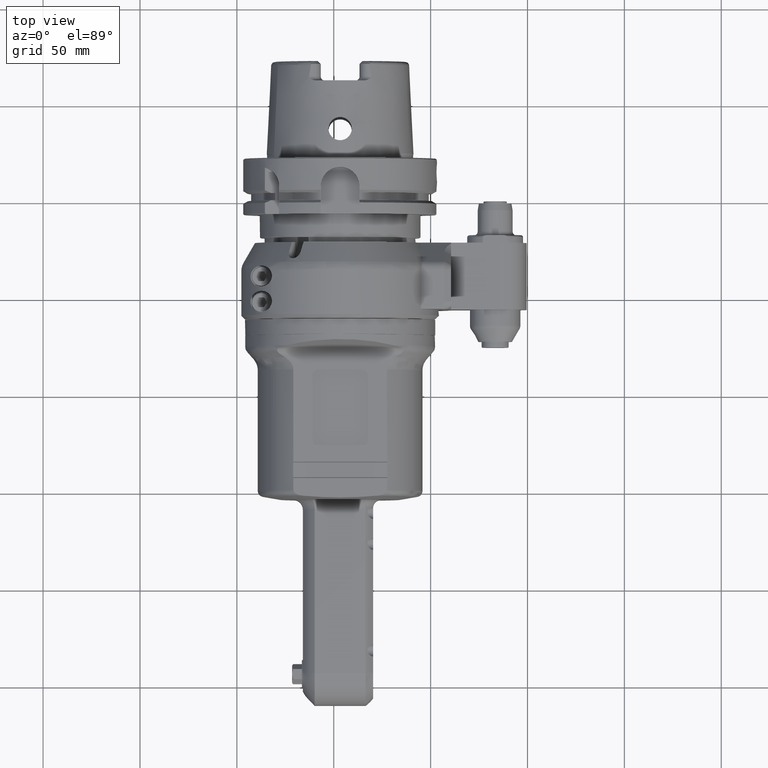
[diagram: clean part render]
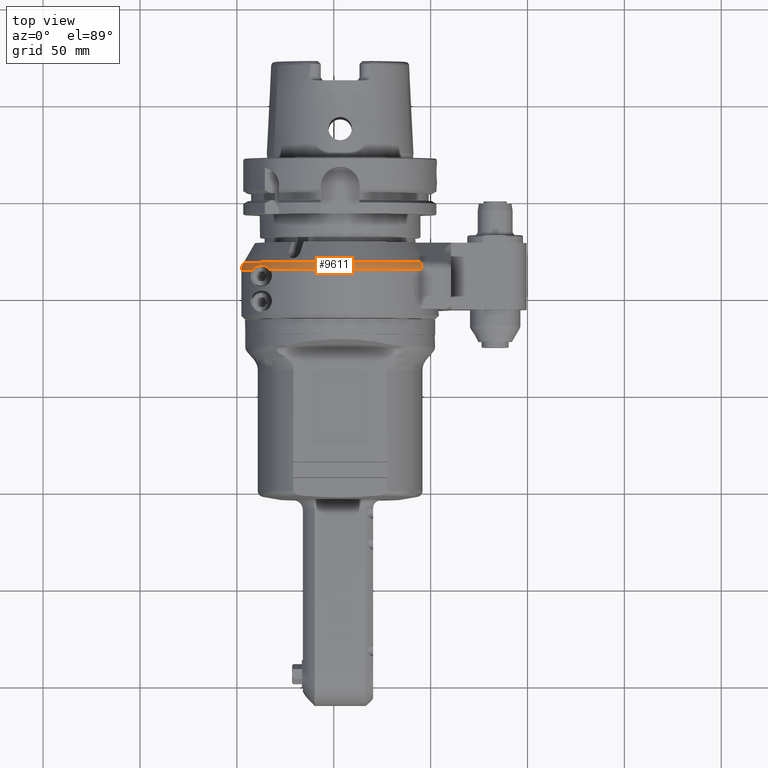
[diagram: same view with one face highlighted and labeled with its STEP entity id]
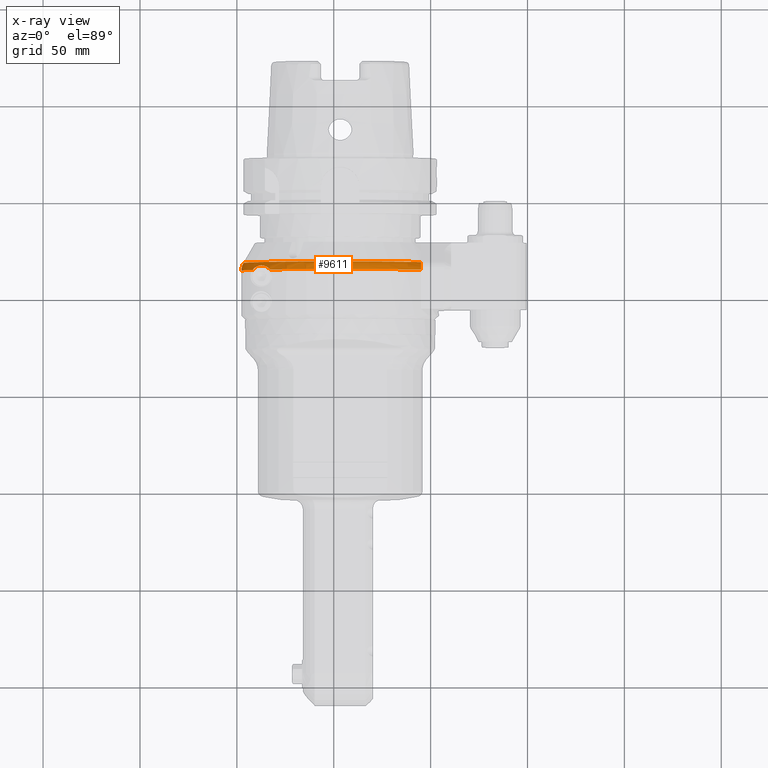
[diagram: x-ray of the same camera — body ghosted, the highlighted face saturated]
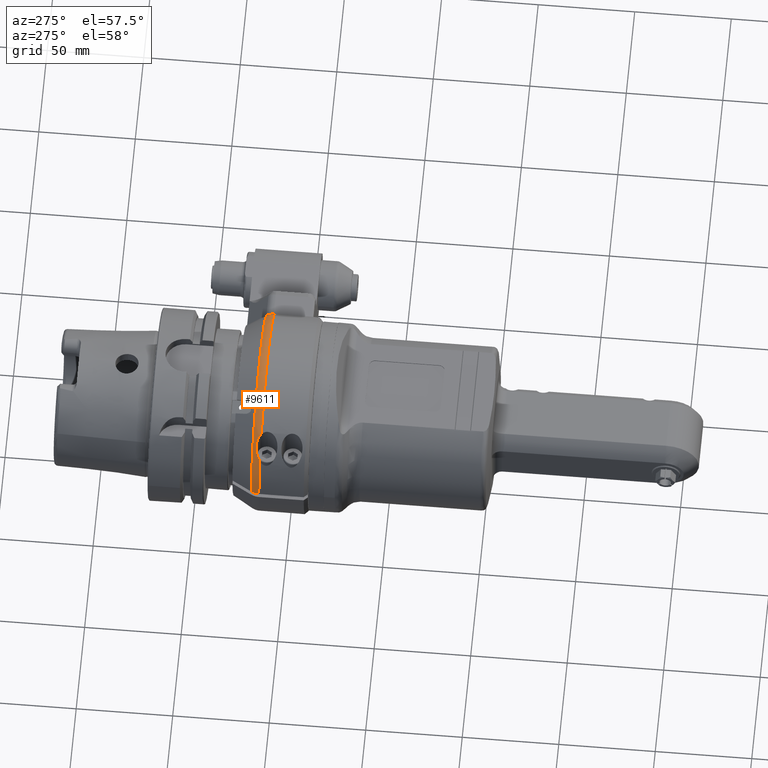
[diagram: same view with one face highlighted and labeled with its STEP entity id]
A machine part, top view. The second image highlights one B-rep face of the part: STEP entity #9611.
The next image is the same camera in x-ray: the body ghosted, the highlighted face saturated — about 0% of this face is hidden behind the body in this view.
A second angle (auxiliary view) of the same face is appended — the face is thin or edge-on in the first view.
In plain terms, the highlighted toroidal blend (fillet) surface has major radius 43 mm and minor (blend) radius 8 mm.
Its self-contained STEP definition (entity closure, byte-faithful):
#46=TOROIDAL_SURFACE('',#10284,43.,8.);
#721=FACE_OUTER_BOUND('',#1310,.T.);
#1310=EDGE_LOOP('',(#6635,#6636,#6637,#6638,#6639,#6640));
#1944=CIRCLE('',#10238,51.);
#1945=CIRCLE('',#10239,51.);
#1966=CIRCLE('',#10281,49.92820323028);
#2379=B_SPLINE_CURVE_WITH_KNOTS('',3,(#14109,#14110,#14111,#14112,#14113,
#14114,#14115,#14116,#14117,#14118),.UNSPECIFIED.,.F.,.F.,(4,2,2,2,4),(-9.68559804021147,
-9.63577634006454,-9.4843525606202,-9.37005770955715,-9.2557628584941),
 .UNSPECIFIED.);
#2394=B_SPLINE_CURVE_WITH_KNOTS('',3,(#14428,#14429,#14430,#14431,#14432,
#14433,#14434,#14435),.UNSPECIFIED.,.F.,.F.,(4,2,2,4),(4.34441023881693,
4.44441523838835,4.59248867498487,4.74056211158139),.UNSPECIFIED.);
#2397=B_SPLINE_CURVE_WITH_KNOTS('',3,(#14467,#14468,#14469,#14470,#14471,
#14472,#14473,#14474,#14475,#14476,#14477,#14478,#14479,#14480,#14481,#14482),
 .UNSPECIFIED.,.F.,.F.,(4,3,3,3,3,4),(-9.34472443709596,-9.15576581563728,
-8.53592281537647,-8.19749167718031,-7.91960616501295,-7.85473194545352),
 .UNSPECIFIED.);
#4017=VERTEX_POINT('',#14074);
#4027=VERTEX_POINT('',#14105);
#4032=VERTEX_POINT('',#14129);
#4034=VERTEX_POINT('',#14138);
#4035=VERTEX_POINT('',#14165);
#4075=VERTEX_POINT('',#14416);
#5006=EDGE_CURVE('',#4027,#4017,#2379,.T.);
#5012=EDGE_CURVE('',#4032,#4017,#1944,.T.);
#5015=EDGE_CURVE('',#4035,#4034,#1945,.T.);
#5078=EDGE_CURVE('',#4075,#4035,#2394,.T.);
#5081=EDGE_CURVE('',#4027,#4075,#1966,.T.);
#5086=EDGE_CURVE('',#4034,#4032,#2397,.T.);
#6635=ORIENTED_EDGE('',*,*,#5081,.T.);
#6636=ORIENTED_EDGE('',*,*,#5078,.T.);
#6637=ORIENTED_EDGE('',*,*,#5015,.T.);
#6638=ORIENTED_EDGE('',*,*,#5086,.T.);
#6639=ORIENTED_EDGE('',*,*,#5012,.T.);
#6640=ORIENTED_EDGE('',*,*,#5006,.F.);
#9611=ADVANCED_FACE('',(#721),#46,.T.);
#10238=AXIS2_PLACEMENT_3D('',#14130,#11293,#11294);
#10239=AXIS2_PLACEMENT_3D('',#14166,#11295,#11296);
#10281=AXIS2_PLACEMENT_3D('',#14441,#11409,#11410);
#10284=AXIS2_PLACEMENT_3D('',#14466,#11415,#11416);
#11293=DIRECTION('center_axis',(0.,1.,0.));
#11294=DIRECTION('ref_axis',(-0.711205879844998,0.,0.702983781088798));
#11295=DIRECTION('center_axis',(0.,1.,0.));
#11296=DIRECTION('ref_axis',(-0.999567380468613,0.,0.0294117647058804));
#11409=DIRECTION('center_axis',(0.,-1.,0.));
#11410=DIRECTION('ref_axis',(0.836200730225418,0.,0.548423503116412));
#11415=DIRECTION('center_axis',(0.,-1.,0.));
#11416=DIRECTION('ref_axis',(-1.,0.,0.));
#14074=CARTESIAN_POINT('',(41.75,25.23205080757,29.29057015492));
#14105=CARTESIAN_POINT('',(41.75,29.23205080757,27.38180011986));
#14109=CARTESIAN_POINT('Ctrl Pts',(41.75,29.2320508075675,27.3818001198576));
#14110=CARTESIAN_POINT('Ctrl Pts',(41.75,29.1084978721799,27.5118698927609));
#14111=CARTESIAN_POINT('Ctrl Pts',(41.75,28.9796012581369,27.63883358715));
#14112=CARTESIAN_POINT('Ctrl Pts',(41.75,28.4412749376929,28.1311886381695));
#14113=CARTESIAN_POINT('Ctrl Pts',(41.75,27.9932266664163,28.4521983127449));
#14114=CARTESIAN_POINT('Ctrl Pts',(41.75,27.2119237728328,28.8694287521605));
#14115=CARTESIAN_POINT('Ctrl Pts',(41.75,26.8258618631201,29.0288082766981));
#14116=CARTESIAN_POINT('Ctrl Pts',(41.75,26.0264941442551,29.2396724058848));
#14117=CARTESIAN_POINT('Ctrl Pts',(41.75,25.6130336444468,29.290570154915));
#14118=CARTESIAN_POINT('Ctrl Pts',(41.75,25.23205080757,29.290570154915));
#14129=CARTESIAN_POINT('',(-36.27149987209,25.23205080757,35.85217283553));
#14130=CARTESIAN_POINT('Origin',(0.,25.23205080757,0.));
#14138=CARTESIAN_POINT('',(-45.1718026933,25.23205080757,23.67505525733));
#14165=CARTESIAN_POINT('',(-50.9779364044793,25.2320508231036,1.499999980309));
#14166=CARTESIAN_POINT('Origin',(0.,25.23205080757,0.));
#14416=CARTESIAN_POINT('',(-49.9056612221311,29.2320587089715,1.50000006858959));
#14428=CARTESIAN_POINT('Ctrl Pts',(-49.9056612240274,29.2320587100669,1.5));
#14429=CARTESIAN_POINT('Ctrl Pts',(-50.0859316928166,28.9199628642827,1.5));
#14430=CARTESIAN_POINT('Ctrl Pts',(-50.2413262775005,28.6009646113261,1.5));
#14431=CARTESIAN_POINT('Ctrl Pts',(-50.5578441661684,27.8370100654999,1.5));
#14432=CARTESIAN_POINT('Ctrl Pts',(-50.7191785472564,27.3203684112507,1.5));
#14433=CARTESIAN_POINT('Ctrl Pts',(-50.9292248693063,26.2646778846743,1.5));
#14434=CARTESIAN_POINT('Ctrl Pts',(-50.9779364038993,25.7256289314938,1.5));
#14435=CARTESIAN_POINT('Ctrl Pts',(-50.9779364038993,25.23205080757,1.5));
#14441=CARTESIAN_POINT('Origin',(0.,29.23205080757,0.));
#14466=CARTESIAN_POINT('Origin',(0.,25.23205080757,0.));
#14467=CARTESIAN_POINT('Ctrl Pts',(-45.1718026933004,25.2320508075727,23.6750552573282));
#14468=CARTESIAN_POINT('Ctrl Pts',(-44.9002459459359,25.6059523067419,24.1931832058651));
#14469=CARTESIAN_POINT('Ctrl Pts',(-44.5838219388064,25.9420066961403,24.7188029255041));
#14470=CARTESIAN_POINT('Ctrl Pts',(-44.2347948006085,26.2317635357588,25.2564932996333));
#14471=CARTESIAN_POINT('Ctrl Pts',(-43.0898773216232,27.1822560162221,27.0202848225543));
#14472=CARTESIAN_POINT('Ctrl Pts',(-41.6682943531788,27.59137352447,28.8794189915692));
#14473=CARTESIAN_POINT('Ctrl Pts',(-40.2906640836259,27.4830876369281,30.7375607372453));
#14474=CARTESIAN_POINT('Ctrl Pts',(-39.5384849351284,27.4239640908754,31.7520967175732));
#14475=CARTESIAN_POINT('Ctrl Pts',(-38.7666121290631,27.2001167152264,32.7926546956207));
#14476=CARTESIAN_POINT('Ctrl Pts',(-38.0796938038266,26.823905127573,33.6844936512153));
#14477=CARTESIAN_POINT('Ctrl Pts',(-37.5156657665635,26.5149981213336,34.4167818391968));
#14478=CARTESIAN_POINT('Ctrl Pts',(-37.0238735560993,26.1276341386836,35.0318289883247));
#14479=CARTESIAN_POINT('Ctrl Pts',(-36.5775081079161,25.6160859153084,35.5266834858289));
#14480=CARTESIAN_POINT('Ctrl Pts',(-36.4733011276265,25.4966615829651,35.6422105569262));
#14481=CARTESIAN_POINT('Ctrl Pts',(-36.370647917166,25.3685659302861,35.7518651548587));
#14482=CARTESIAN_POINT('Ctrl Pts',(-36.2714998720946,25.2320508075659,35.8521728355289));